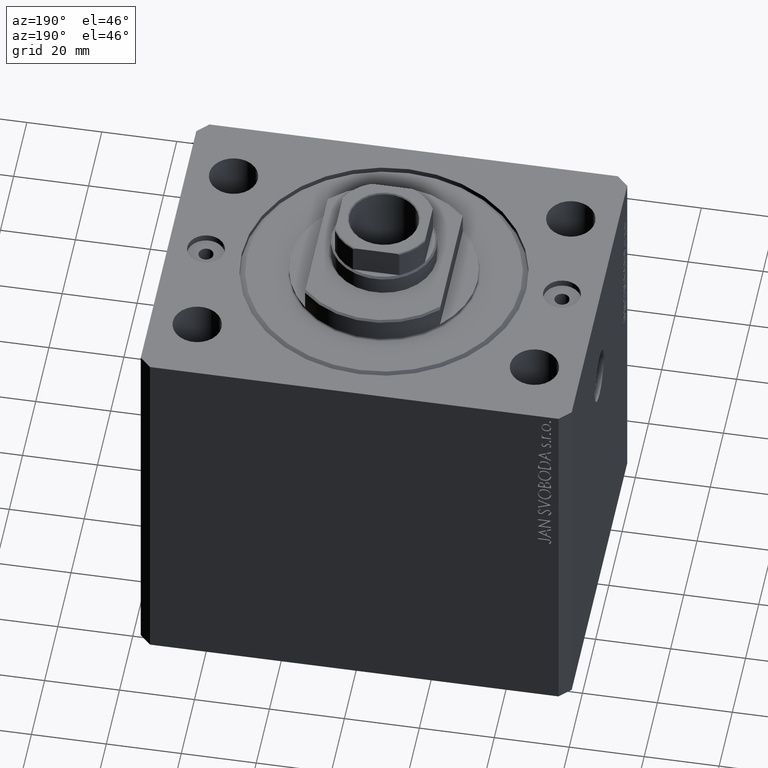
[diagram: clean part render]
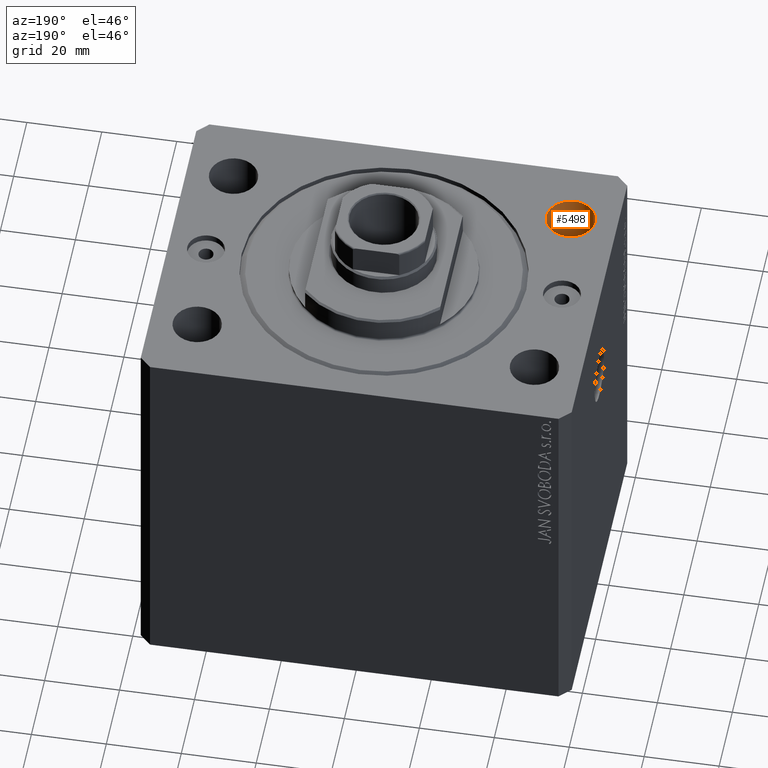
[diagram: same view with one face highlighted and labeled with its STEP entity id]
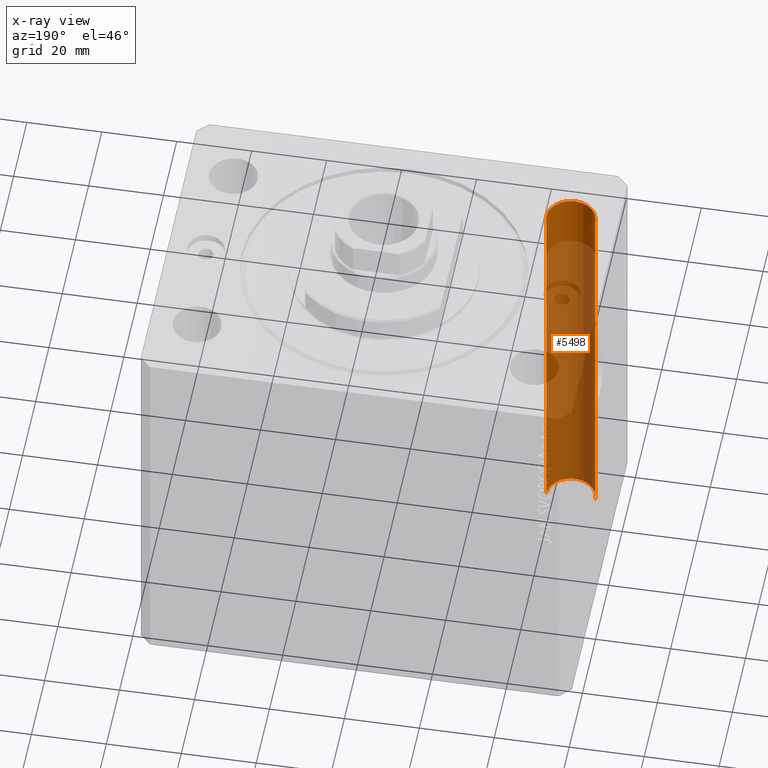
[diagram: x-ray of the same camera — body ghosted, the highlighted face saturated]
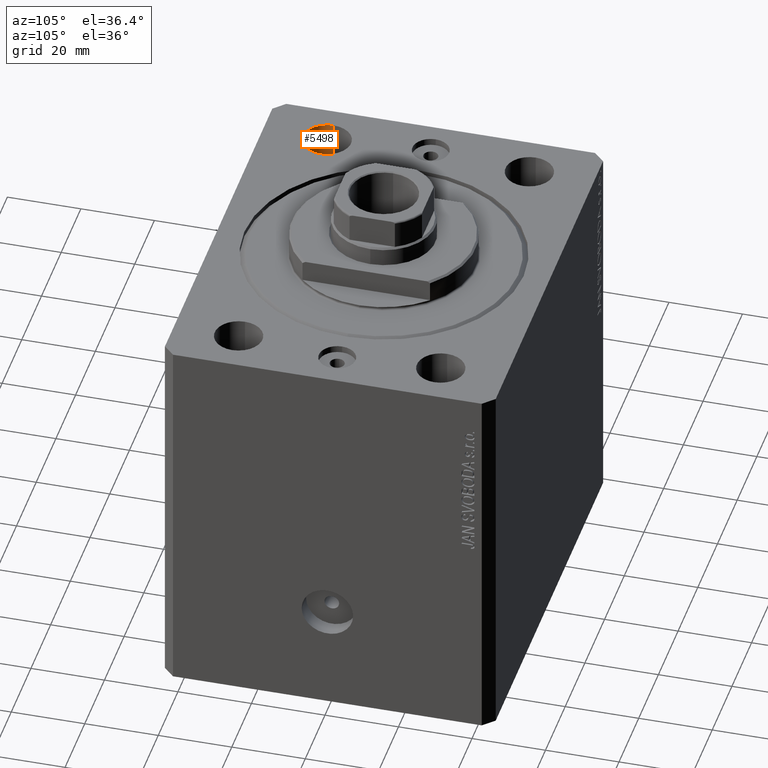
[diagram: same view with one face highlighted and labeled with its STEP entity id]
A machine part, auxiliary view. The second image highlights one B-rep face of the part: STEP entity #5498.
The next image is the same camera in x-ray: the body ghosted, the highlighted face saturated — about 86% of this face is hidden behind the body in this view.
A second angle (auxiliary view) of the same face is appended — the face is thin or edge-on in the first view.
In plain terms, the highlighted cylindrical surface (edge-blend (fillet) strip) has radius 6.5 mm, axis along (0, 0, 1).
Its self-contained STEP definition (entity closure, byte-faithful):
#327 = CIRCLE ( 'NONE', #41297, 6.499999999999999112 ) ;
#361 = CYLINDRICAL_SURFACE ( 'NONE', #35424, 6.499999999999999112 ) ;
#818 = CARTESIAN_POINT ( 'NONE',  ( -44.99999999999998579, -27.50000000000000355, -123.3847763108502278 ) ) ;
#3054 = DIRECTION ( 'NONE',  ( -0.000000000000000000, -0.000000000000000000, 1.000000000000000000 ) ) ;
#3976 = DIRECTION ( 'NONE',  ( 1.000000000000000000, 0.000000000000000000, 0.000000000000000000 ) ) ;
#4472 = CARTESIAN_POINT ( 'NONE',  ( -51.49999999999998579, -27.50000000000000355, -105.0000000000000000 ) ) ;
#5498 = ADVANCED_FACE ( 'NONE', ( #30066 ), #361, .F. ) ;
#11069 = EDGE_CURVE ( 'NONE', #31239, #28088, #327, .T. ) ;
#12250 = DIRECTION ( 'NONE',  ( 0.000000000000000000, 0.000000000000000000, 1.000000000000000000 ) ) ;
#12528 = CARTESIAN_POINT ( 'NONE',  ( -44.99999999999998579, -27.50000000000000355, -105.0000000000000000 ) ) ;
#14109 = CARTESIAN_POINT ( 'NONE',  ( -51.49999999999998579, -27.50000000000000355, -123.3847763108502278 ) ) ;
#16438 = CARTESIAN_POINT ( 'NONE',  ( -51.49999999999998579, -27.50000000000000355, 0.000000000000000000 ) ) ;
#17733 = EDGE_CURVE ( 'NONE', #31239, #32352, #23306, .T. ) ;
#17912 = DIRECTION ( 'NONE',  ( -0.000000000000000000, -0.000000000000000000, 1.000000000000000000 ) ) ;
#22558 = ORIENTED_EDGE ( 'NONE', *, *, #27795, .T. ) ;
#23306 = LINE ( 'NONE', #44185, #41329 ) ;
#24076 = CARTESIAN_POINT ( 'NONE',  ( -44.99999999999998579, -27.50000000000000355, 0.000000000000000000 ) ) ;
#25264 = VERTEX_POINT ( 'NONE', #16438 ) ;
#26236 = DIRECTION ( 'NONE',  ( -0.000000000000000000, -0.000000000000000000, -1.000000000000000000 ) ) ;
#27795 = EDGE_CURVE ( 'NONE', #25264, #32352, #40840, .T. ) ;
#28088 = VERTEX_POINT ( 'NONE', #4472 ) ;
#28109 = EDGE_LOOP ( 'NONE', ( #39281, #32059, #22558, #37493 ) ) ;
#28647 = AXIS2_PLACEMENT_3D ( 'NONE', #24076, #12250, #37801 ) ;
#30066 = FACE_OUTER_BOUND ( 'NONE', #28109, .T. ) ;
#31239 = VERTEX_POINT ( 'NONE', #31648 ) ;
#31648 = CARTESIAN_POINT ( 'NONE',  ( -38.49999999999998579, -27.50000000000000355, -105.0000000000000000 ) ) ;
#32059 = ORIENTED_EDGE ( 'NONE', *, *, #36509, .T. ) ;
#32352 = VERTEX_POINT ( 'NONE', #37457 ) ;
#35211 = VECTOR ( 'NONE', #41550, 1000.000000000000000 ) ;
#35424 = AXIS2_PLACEMENT_3D ( 'NONE', #818, #17912, #3976 ) ;
#36509 = EDGE_CURVE ( 'NONE', #28088, #25264, #38630, .T. ) ;
#37457 = CARTESIAN_POINT ( 'NONE',  ( -38.49999999999998579, -27.50000000000000355, 0.000000000000000000 ) ) ;
#37493 = ORIENTED_EDGE ( 'NONE', *, *, #17733, .F. ) ;
#37801 = DIRECTION ( 'NONE',  ( 1.000000000000000000, 0.000000000000000000, 0.000000000000000000 ) ) ;
#38630 = LINE ( 'NONE', #14109, #35211 ) ;
#39281 = ORIENTED_EDGE ( 'NONE', *, *, #11069, .T. ) ;
#39974 = DIRECTION ( 'NONE',  ( 1.000000000000000000, 0.000000000000000000, 0.000000000000000000 ) ) ;
#40840 = CIRCLE ( 'NONE', #28647, 6.499999999999999112 ) ;
#41297 = AXIS2_PLACEMENT_3D ( 'NONE', #12528, #26236, #39974 ) ;
#41329 = VECTOR ( 'NONE', #3054, 1000.000000000000000 ) ;
#41550 = DIRECTION ( 'NONE',  ( -0.000000000000000000, -0.000000000000000000, 1.000000000000000000 ) ) ;
#44185 = CARTESIAN_POINT ( 'NONE',  ( -38.49999999999998579, -27.50000000000000355, -123.3847763108502278 ) ) ;